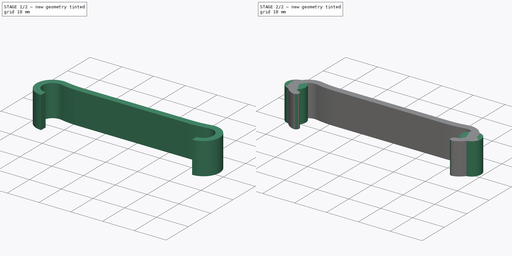
[diagram: build sequence overview — one tinted view per stage of 2, left to right]
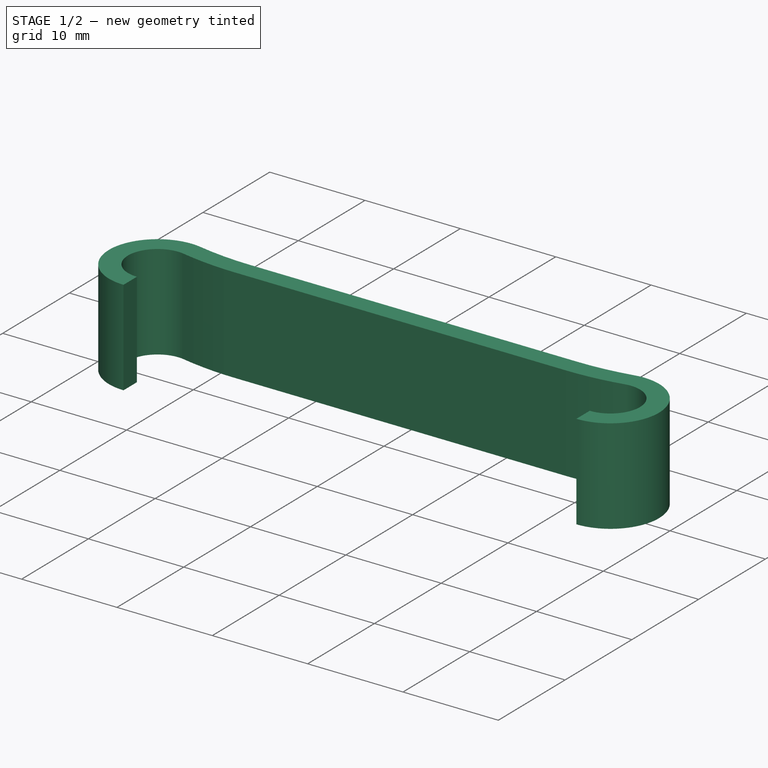
[diagram: stage 1 of 2 — iso view after this stage's code; geometry added in this stage tinted green]
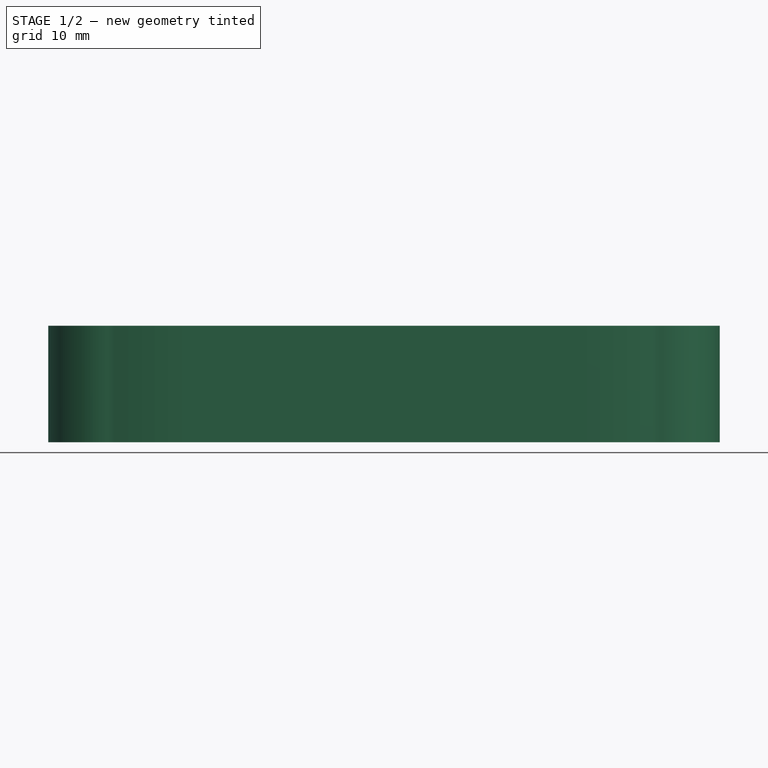
[diagram: stage 1 of 2 — front view after this stage's code; geometry added in this stage tinted green]
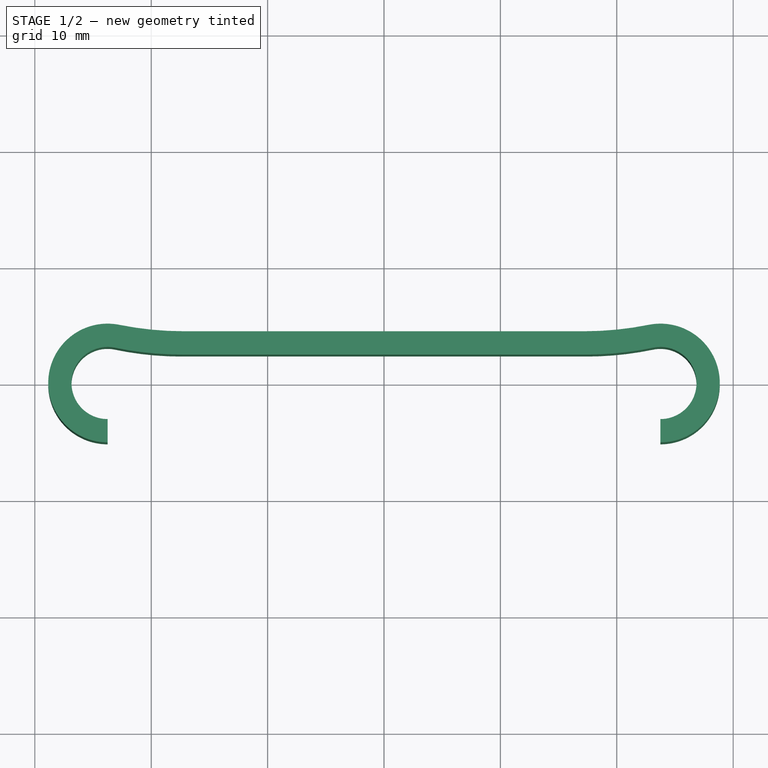
[diagram: stage 1 of 2 — top view after this stage's code; geometry added in this stage tinted green]
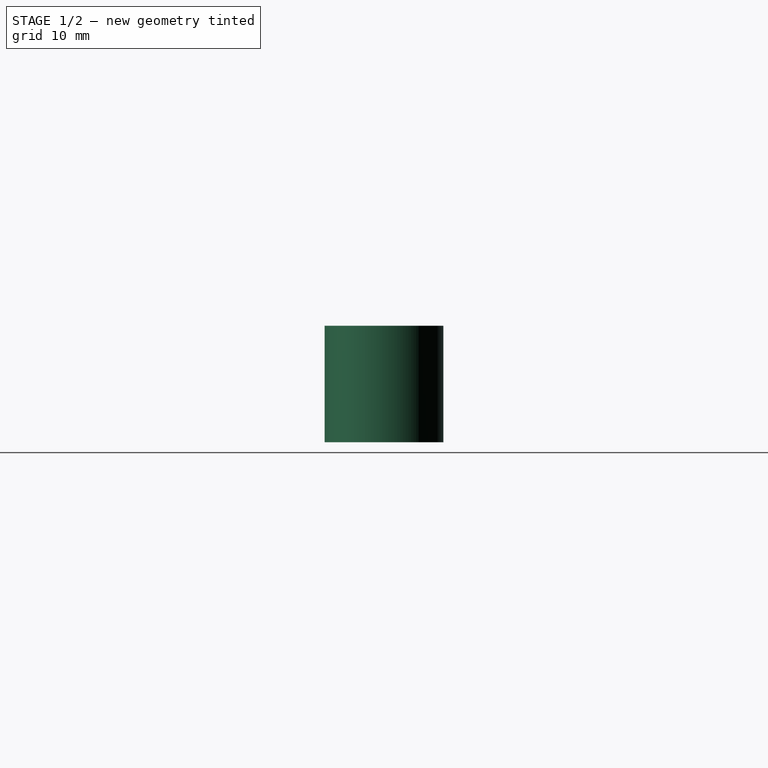
[diagram: stage 1 of 2 — right view after this stage's code; geometry added in this stage tinted green]
FCSTD DOCUMENT  (FreeCAD 0.16R6707 (Git))
Label: Arm_Tensioner
License: CreativeCommons Attribution-NonCommercial
LicenseURL: http://creativecommons.org/licenses/by-nc/4.0/
objects: Sketcher::SketchObject×2, PartDesign::Pad×2, PartDesign::Fillet×2
note: 8 computed .brp shape members not serialized (recipe doc carries the construction recipe); baked Part::Feature solids carry a one-line shape summary decoded from their .brp

FEATURE [Sketcher::SketchObject] Sketch001
  sketch-geometry (10):
    g0: ArcOfCircle CenterX=-23.75 CenterY=0 CenterZ=0 NormalX=0 NormalY=0 NormalZ=1 Radius=3.1 StartAngle=0.908824 EndAngle=4.71239
    g1: ArcOfCircle CenterX=-23.75 CenterY=0 CenterZ=0 NormalX=0 NormalY=0 NormalZ=1 Radius=5.1 StartAngle=1.05848 EndAngle=4.71239
    g2: ArcOfCircle CenterX=23.75 CenterY=0 CenterZ=0 NormalX=0 NormalY=0 NormalZ=1 Radius=3.1 StartAngle=4.71239 EndAngle=8.51595
    g3: ArcOfCircle CenterX=23.75 CenterY=0 CenterZ=0 NormalX=0 NormalY=0 NormalZ=1 Radius=5.1 StartAngle=4.71239 EndAngle=8.3663
    g4: LineSegment StartX=-23.75 StartY=-3.1 StartZ=0 EndX=-23.75 EndY=-5.1 EndZ=0
    g5: LineSegment [constr] StartX=-23.75 StartY=0 StartZ=0 EndX=-23.75 EndY=-5.1 EndZ=0
    g6: LineSegment StartX=23.75 StartY=-5.1 StartZ=0 EndX=23.75 EndY=-3.1 EndZ=0
    g7: LineSegment [constr] StartX=23.75 StartY=0 StartZ=0 EndX=23.75 EndY=-3.1 EndZ=0
    g8: LineSegment StartX=-21.25 StartY=4.44522 StartZ=0 EndX=21.25 EndY=4.44522 EndZ=0
    g9: LineSegment StartX=-21.8445 StartY=2.44522 StartZ=0 EndX=21.8445 EndY=2.44522 EndZ=0
  constraints (30):
    c: PointOnObject(g0,g-1)
    c: Coincident(g1,g0)
    c: Coincident(g3,g2)
    c: Radius(g0) = 3.1
    c: Equal(g0,g2)
    c: DistanceX(g0,g2) = 47.5
    c: Symmetric(g0,g2,g-2)
    c: Coincident(g4,g0)
    c: Coincident(g4,g1)
    c: Vertical(g4)
    c: Coincident(g5,g0)
    c: Coincident(g5,g1)
    c: Vertical(g5)
    c: Coincident(g6,g3)
    c: Coincident(g6,g2)
    c: Vertical(g6)
    c: Coincident(g7,g2)
    c: Coincident(g7,g2)
    c: Vertical(g7)
    c: Equal(g6,g4)
    c: DistanceY(g6,g6) = 2
    c: Coincident(g8,g1)
    c: Horizontal(g8)
    c: Coincident(g3,g8)
    c: Coincident(g9,g0)
    c: Horizontal(g9)
    c: Coincident(g9,g2)
    c: DistanceY(g2,g3) = 2
    c: Symmetric(g0,g2,g-2)
    c: DistanceX(g8,g8) = 42.5
FEATURE [PartDesign::Pad] Pad001
  Length = 10
  Length2 = 100
  Sketch = -> Sketch001
  Type = 0
FEATURE [PartDesign::Fillet] Fillet
  Base = -> Pad001 [Edge11,Edge8,Edge1,Edge20]
  Radius = 28
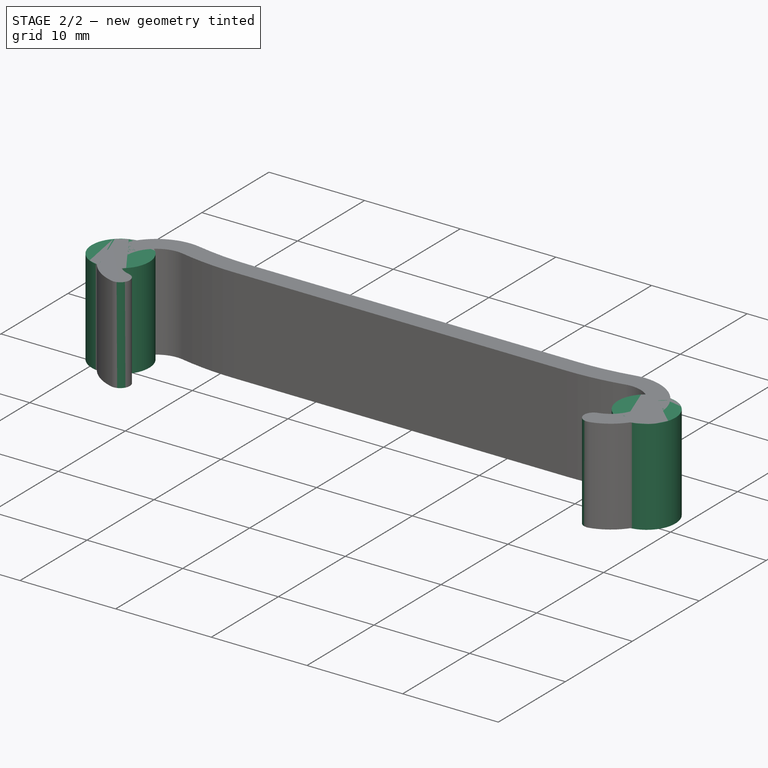
[diagram: stage 2 of 2 — iso view after this stage's code; geometry added in this stage tinted green]
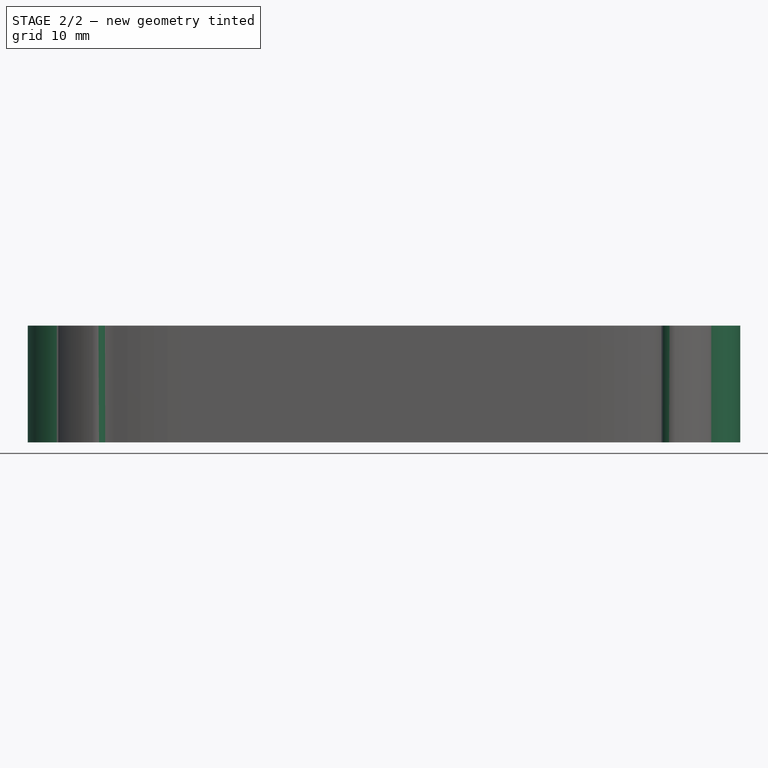
[diagram: stage 2 of 2 — front view after this stage's code; geometry added in this stage tinted green]
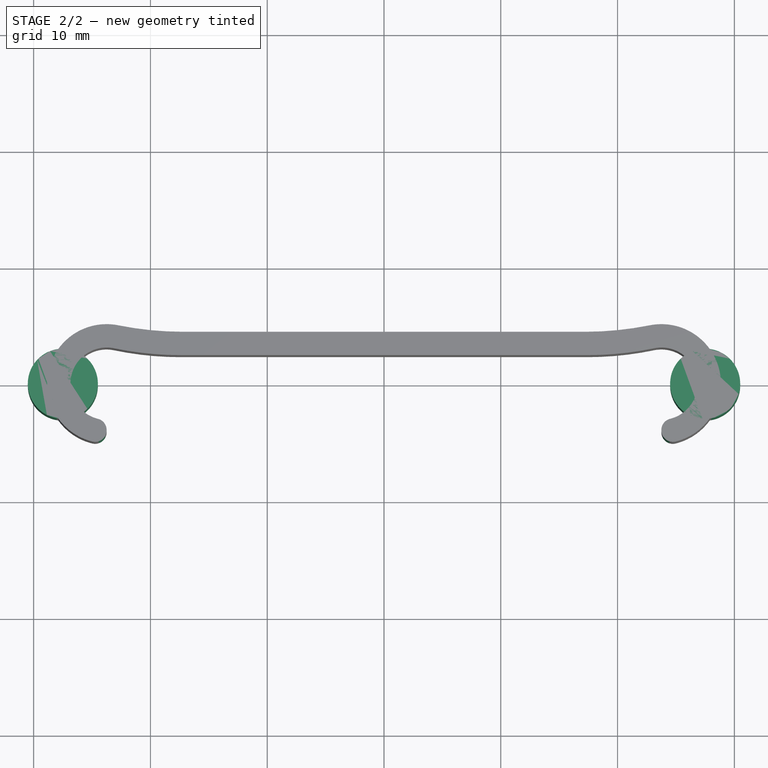
[diagram: stage 2 of 2 — top view after this stage's code; geometry added in this stage tinted green]
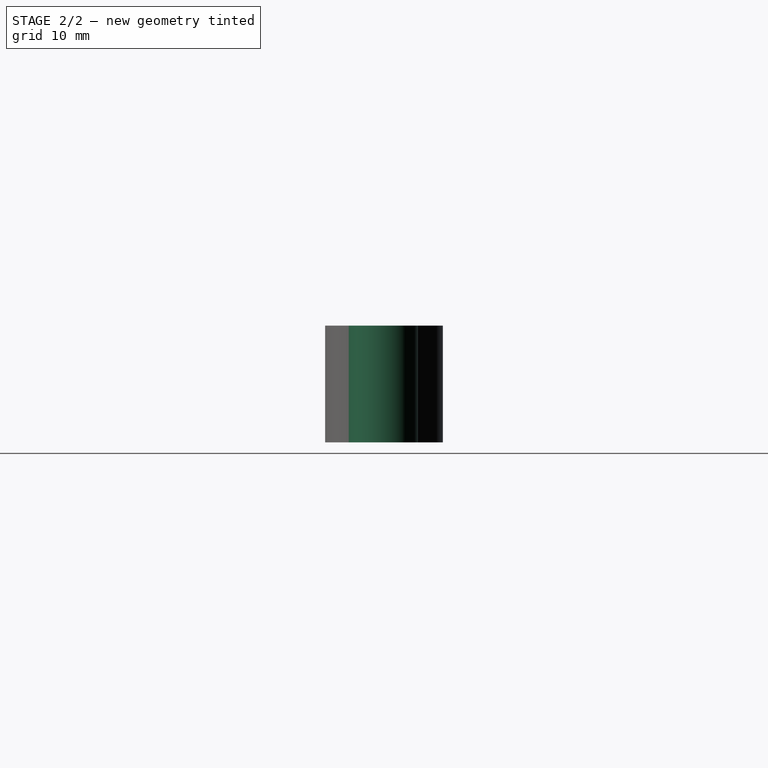
[diagram: stage 2 of 2 — right view after this stage's code; geometry added in this stage tinted green]
FEATURE [Sketcher::SketchObject] Sketch
  sketch-geometry (2):
    g0: Circle CenterX=-27.5 CenterY=0 CenterZ=0 NormalX=0 NormalY=0 NormalZ=1 Radius=3
    g1: Circle CenterX=27.5 CenterY=0 CenterZ=0 NormalX=0 NormalY=0 NormalZ=1 Radius=3
  constraints (6):
    c: PointOnObject(g0,g-1)
    c: PointOnObject(g1,g-1)
    c: Symmetric(g0,g1,g-2)
    c: Radius(g1) = 3
    c: Equal(g1,g0)
    c: DistanceX(g0,g1) = 55
FEATURE [PartDesign::Pad] Pad
  Length = 10
  Length2 = 100
  Sketch = -> Sketch
  Type = 0
FEATURE [PartDesign::Fillet] Fillet001
  Base = -> Fillet [Edge18,Edge3,Edge33,Edge35]
  Radius = 0.99
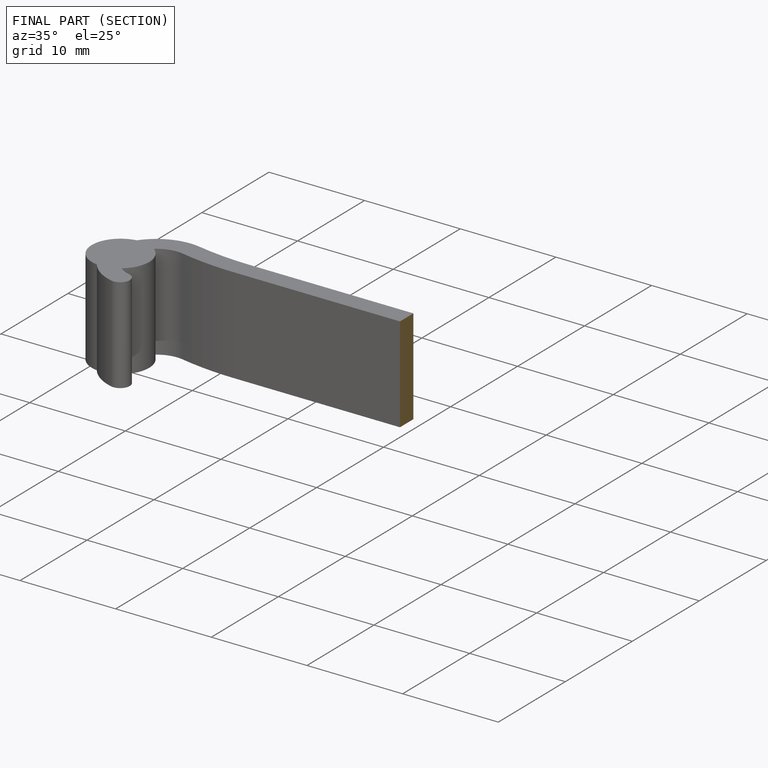
[diagram: finished part — half-section view (interior)]
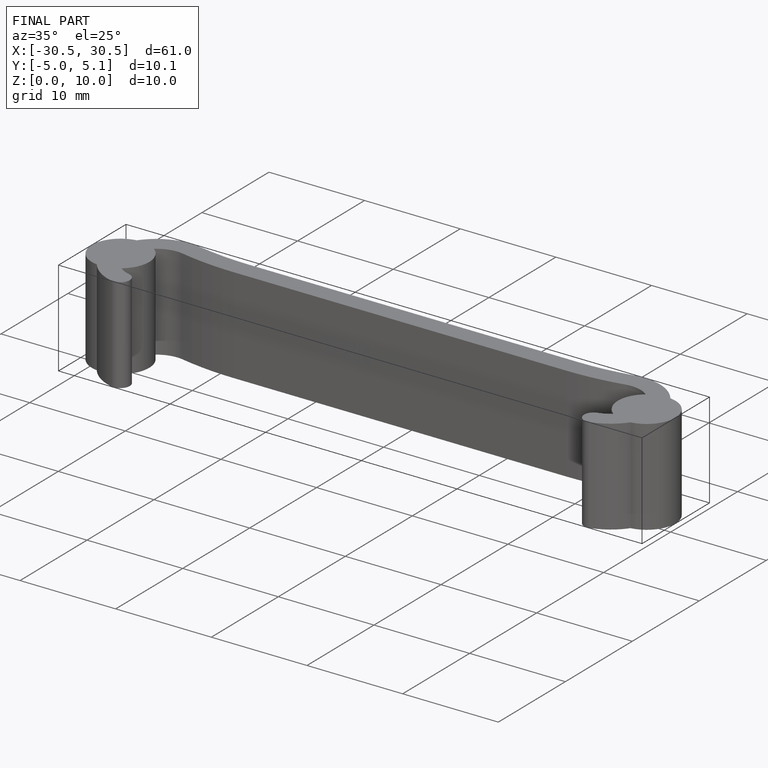
[diagram: finished part — iso view with bounding-box wireframe]
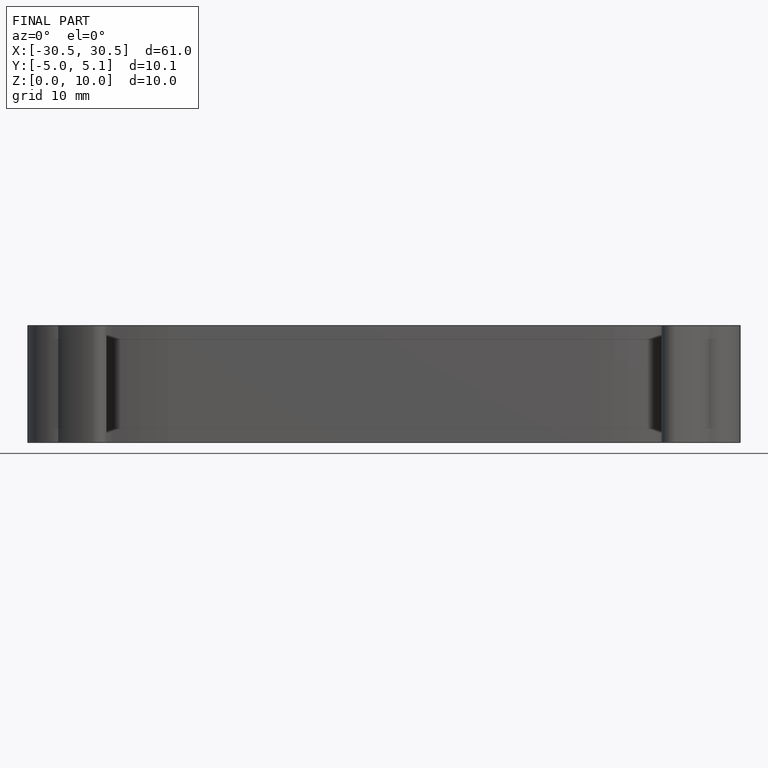
[diagram: finished part — front view with bounding-box wireframe]
